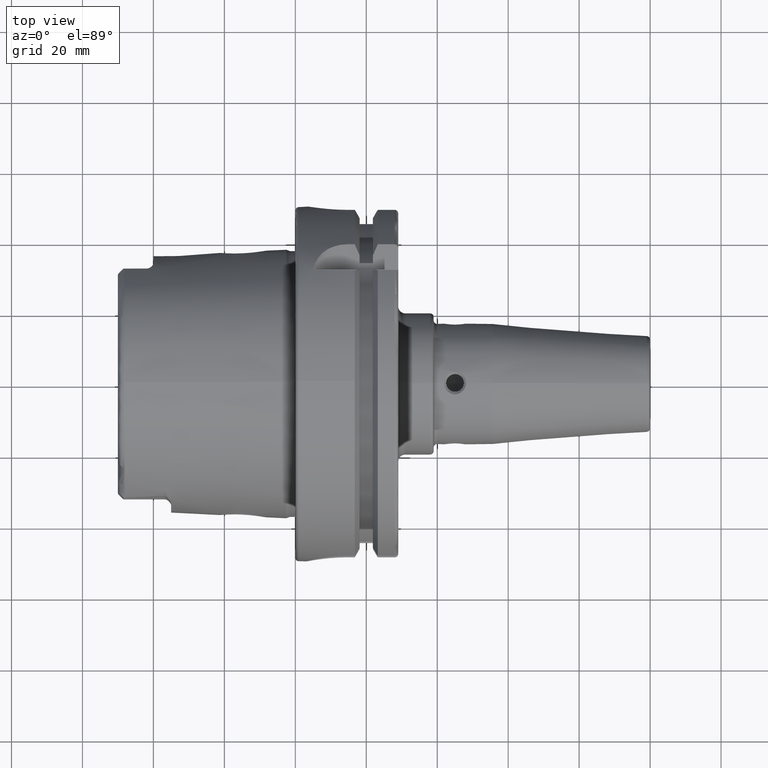
[diagram: clean part render]
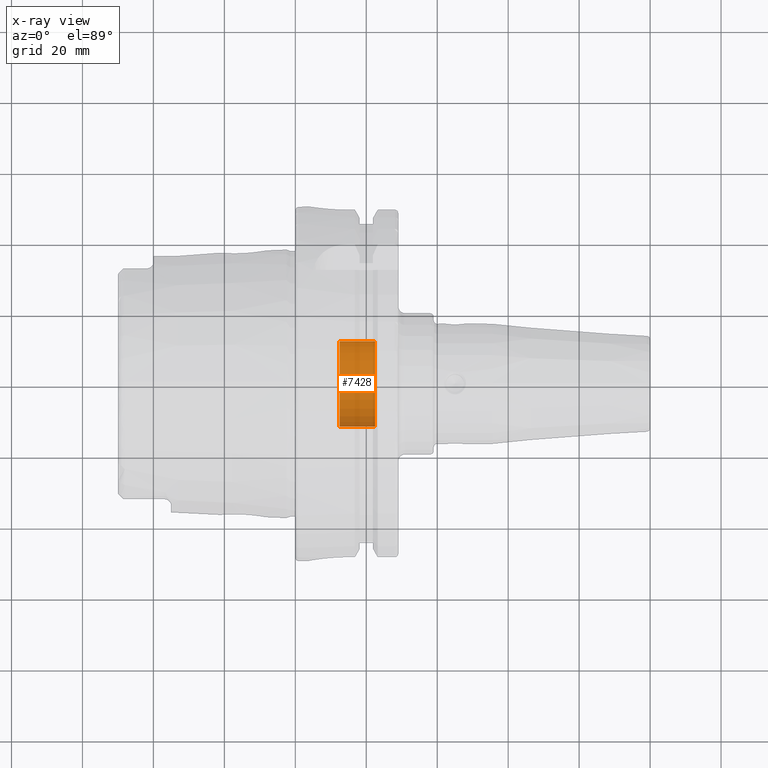
[diagram: x-ray — body ghosted, one internal face saturated and labeled with its STEP entity id]
A machine part, top view, then the same camera in x-ray: the body is ghosted and one INTERNAL B-rep face — a face not visible from any outside direction — is saturated and labeled: STEP entity #7428.
In plain terms, the highlighted cylindrical surface (partial cylindrical patch) has radius 12 mm, axis along (-1, 0, 0).
Its self-contained STEP definition (entity closure, byte-faithful):
#7377=CARTESIAN_POINT('',(1.25E1,0.E0,0.E0));
#7378=DIRECTION('',(1.E0,0.E0,0.E0));
#7379=DIRECTION('',(0.E0,-1.E0,0.E0));
#7380=AXIS2_PLACEMENT_3D('',#7377,#7378,#7379);
#7382=DIRECTION('',(-1.E0,0.E0,0.E0));
#7383=VECTOR('',#7382,1.E1);
#7384=CARTESIAN_POINT('',(2.25E1,-1.2E1,0.E0));
#7385=LINE('',#7384,#7383);
#7391=DIRECTION('',(-1.E0,0.E0,0.E0));
#7392=VECTOR('',#7391,1.E1);
#7393=CARTESIAN_POINT('',(2.25E1,1.2E1,0.E0));
#7394=LINE('',#7393,#7392);
#7400=CARTESIAN_POINT('',(2.25E1,0.E0,0.E0));
#7401=DIRECTION('',(1.E0,0.E0,0.E0));
#7402=DIRECTION('',(0.E0,-1.E0,0.E0));
#7403=AXIS2_PLACEMENT_3D('',#7400,#7401,#7402);
#7405=CARTESIAN_POINT('',(1.25E1,-1.2E1,0.E0));
#7406=CARTESIAN_POINT('',(1.25E1,1.2E1,0.E0));
#7407=VERTEX_POINT('',#7405);
#7408=VERTEX_POINT('',#7406);
#7409=CARTESIAN_POINT('',(2.25E1,1.2E1,0.E0));
#7410=VERTEX_POINT('',#7409);
#7411=CARTESIAN_POINT('',(2.25E1,-1.2E1,0.E0));
#7412=VERTEX_POINT('',#7411);
#7413=CARTESIAN_POINT('',(2.3E1,0.E0,0.E0));
#7414=DIRECTION('',(-1.E0,0.E0,0.E0));
#7415=DIRECTION('',(0.E0,1.E0,0.E0));
#7416=AXIS2_PLACEMENT_3D('',#7413,#7414,#7415);
#7417=CYLINDRICAL_SURFACE('',#7416,1.2E1);
#7419=ORIENTED_EDGE('',*,*,#7418,.T.);
#7421=ORIENTED_EDGE('',*,*,#7420,.F.);
#7423=ORIENTED_EDGE('',*,*,#7422,.F.);
#7425=ORIENTED_EDGE('',*,*,#7424,.T.);
#7426=EDGE_LOOP('',(#7419,#7421,#7423,#7425));
#7427=FACE_OUTER_BOUND('',#7426,.F.);
#7428=ADVANCED_FACE('',(#7427),#7417,.F.);
#7381=CIRCLE('',#7380,1.2E1);
#7404=CIRCLE('',#7403,1.2E1);
#7418=EDGE_CURVE('',#7407,#7408,#7381,.T.);
#7420=EDGE_CURVE('',#7410,#7408,#7394,.T.);
#7422=EDGE_CURVE('',#7412,#7410,#7404,.T.);
#7424=EDGE_CURVE('',#7412,#7407,#7385,.T.);